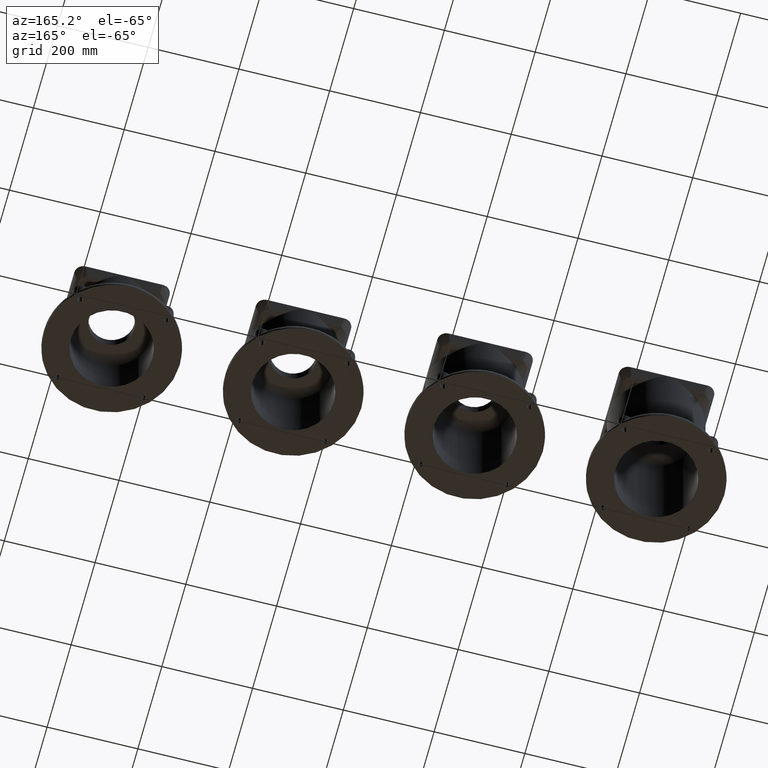
[diagram: clean part render]
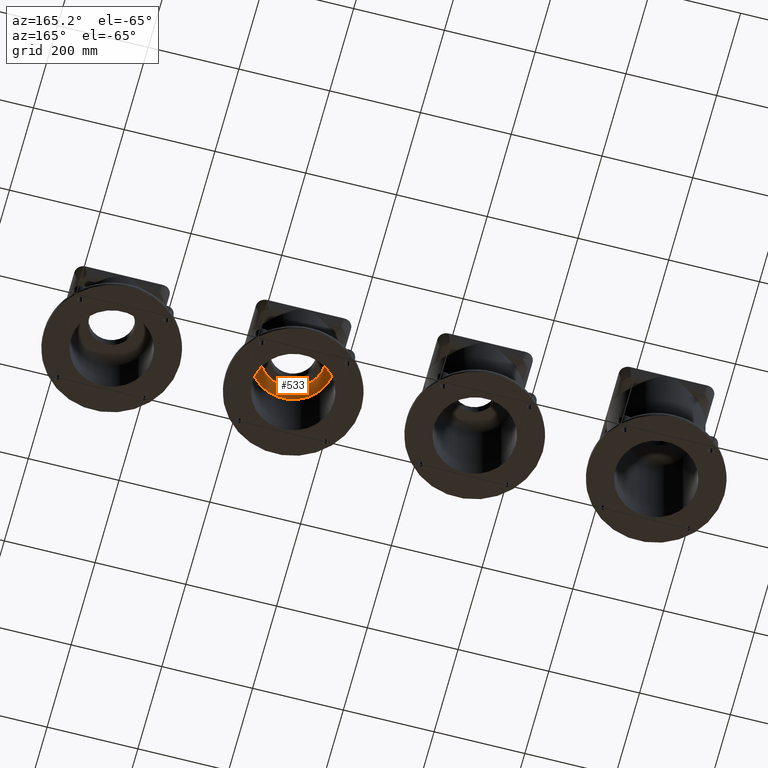
[diagram: same view with one face highlighted and labeled with its STEP entity id]
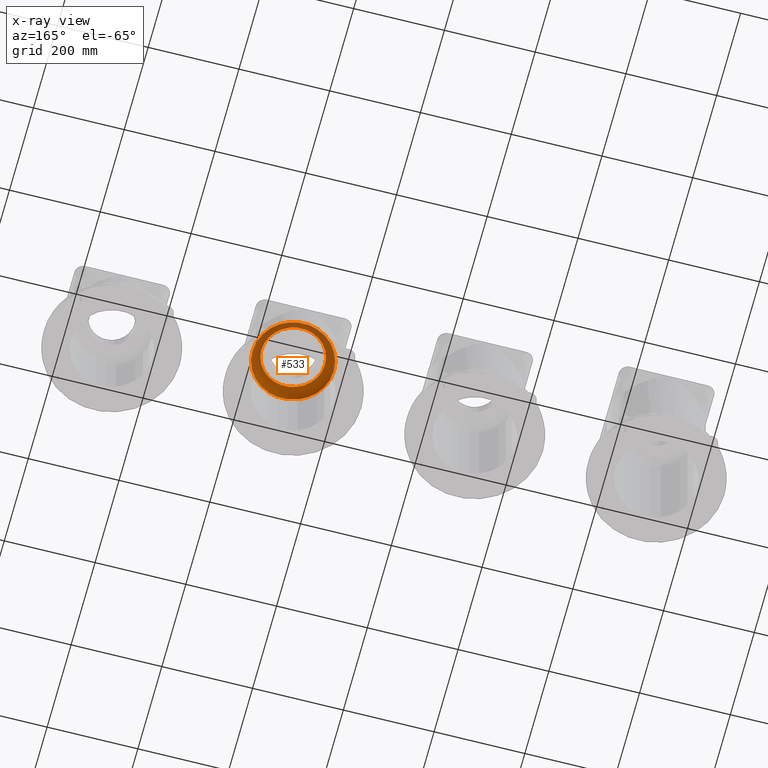
[diagram: x-ray of the same camera — body ghosted, the highlighted face saturated]
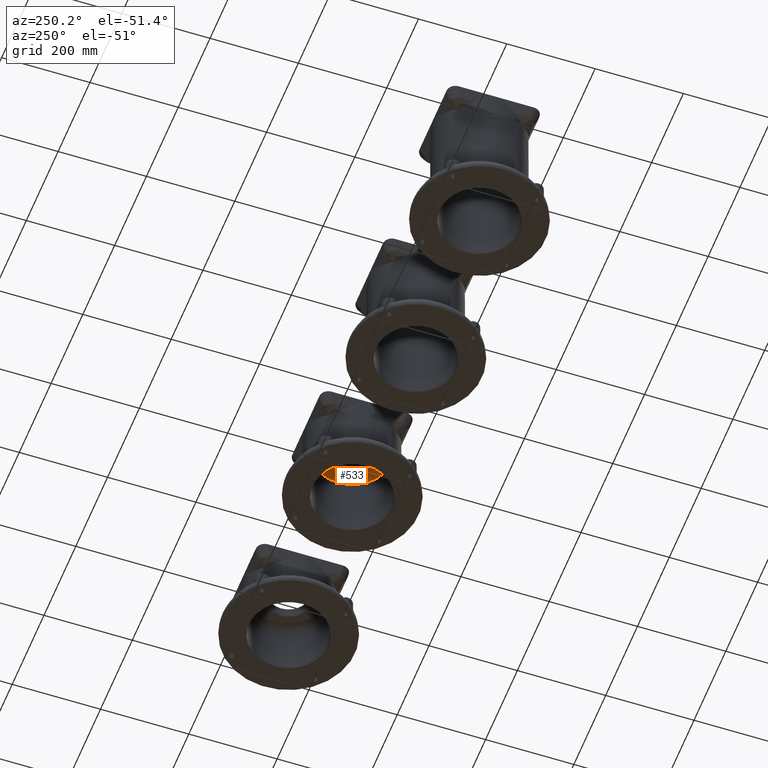
[diagram: same view with one face highlighted and labeled with its STEP entity id]
A machine part, auxiliary view. The second image highlights one B-rep face of the part: STEP entity #533.
The next image is the same camera in x-ray: the body ghosted, the highlighted face saturated — about 42% of this face is hidden behind the body in this view.
A second angle (auxiliary view) of the same face is appended — the face is thin or edge-on in the first view.
In plain terms, the highlighted toroidal blend (fillet) surface has major radius 70 mm and minor (blend) radius 20 mm.
Its self-contained STEP definition (entity closure, byte-faithful):
#533=ADVANCED_FACE('',(#1190,#1191),#1192,.F.);
#1190=FACE_OUTER_BOUND('',#4467,.T.);
#1191=FACE_OUTER_BOUND('',#4468,.T.);
#1192=TOROIDAL_SURFACE('',#4469,70.0,20.0);
#4467=EDGE_LOOP('',(#8625));
#4468=EDGE_LOOP('',(#8626));
#4469=AXIS2_PLACEMENT_3D('',#8627,#8628,#8629);
#8625=ORIENTED_EDGE('',*,*,#10581,.T.);
#8626=ORIENTED_EDGE('',*,*,#10582,.T.);
#8627=CARTESIAN_POINT('',(0.0,0.0,-120.0));
#8628=DIRECTION('',(0.0,0.0,1.0));
#8629=DIRECTION('',(1.0,0.0,0.0));
#10581=EDGE_CURVE('',#11899,#11899,#11900,.F.);
#10582=EDGE_CURVE('',#11901,#11901,#11902,.T.);
#11899=VERTEX_POINT('',#17164);
#11900=CIRCLE('',#17165,70.0);
#11901=VERTEX_POINT('',#17166);
#11902=CIRCLE('',#17167,90.0);
#17164=CARTESIAN_POINT('',(70.0,0.0,-140.0));
#17165=AXIS2_PLACEMENT_3D('',#21484,#21485,#21486);
#17166=CARTESIAN_POINT('',(90.0,0.0,-120.0));
#17167=AXIS2_PLACEMENT_3D('',#21487,#21488,#21489);
#21484=CARTESIAN_POINT('',(0.0,0.0,-140.0));
#21485=DIRECTION('',(0.0,0.0,1.0));
#21486=DIRECTION('',(1.0,0.0,0.0));
#21487=CARTESIAN_POINT('',(0.0,0.0,-120.0));
#21488=DIRECTION('',(0.0,0.0,1.0));
#21489=DIRECTION('',(1.0,0.0,0.0));